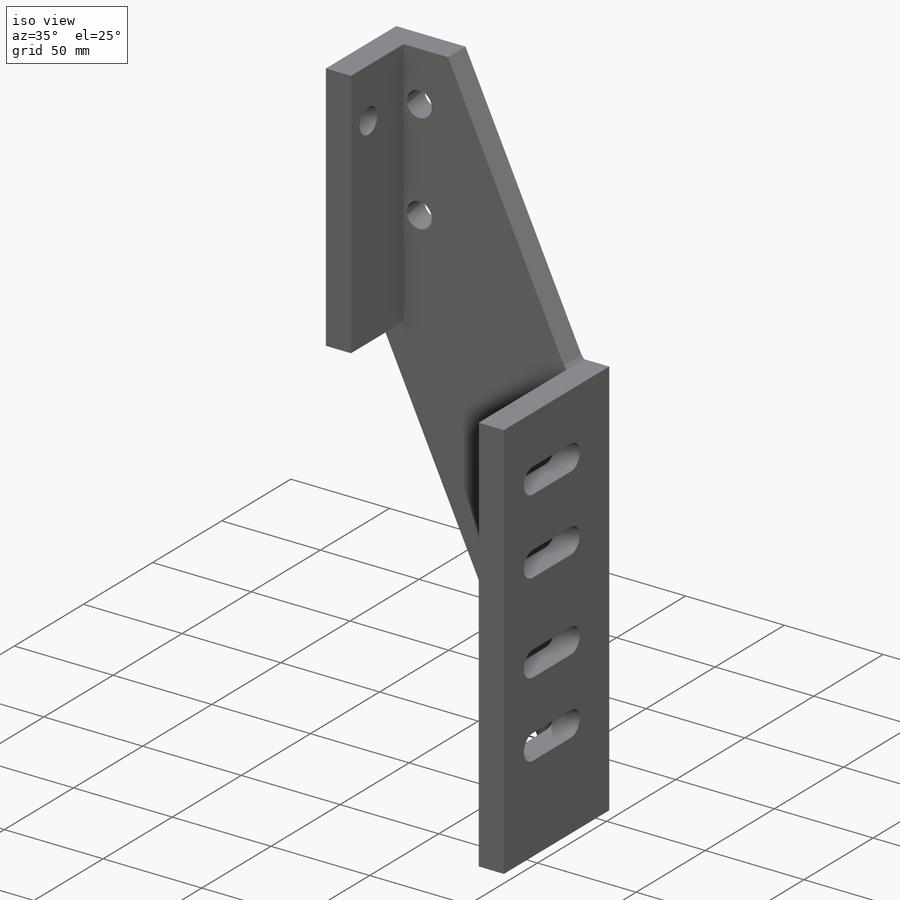
[diagram: iso view]
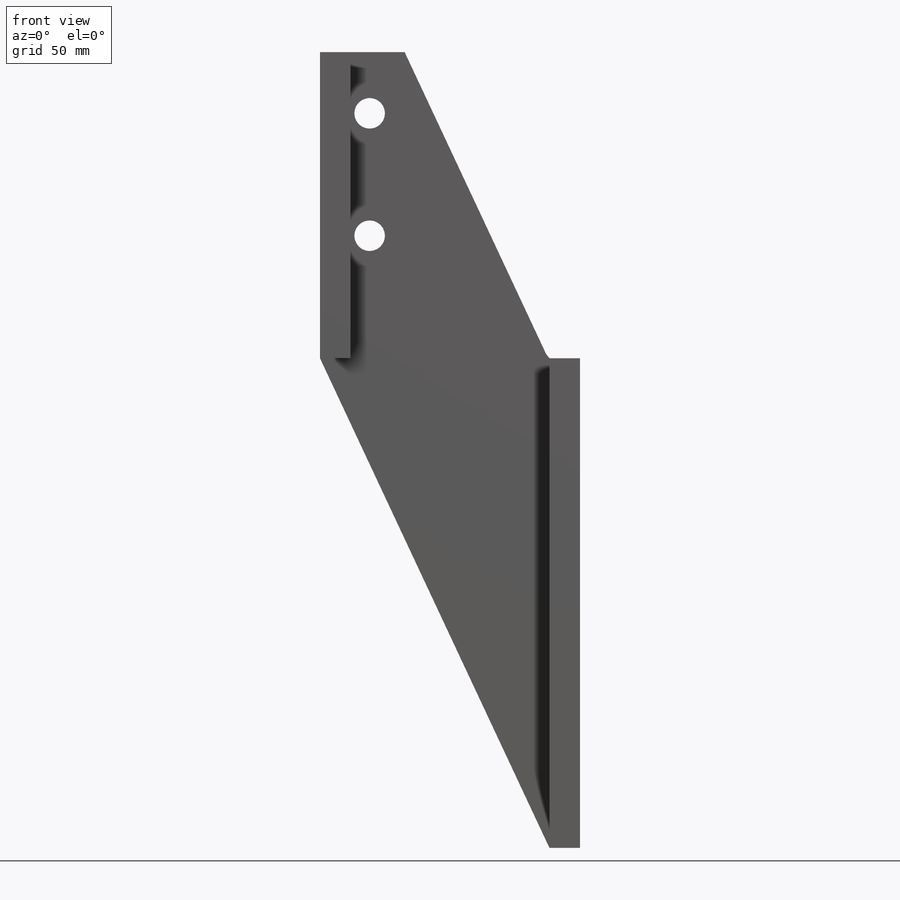
[diagram: front view]
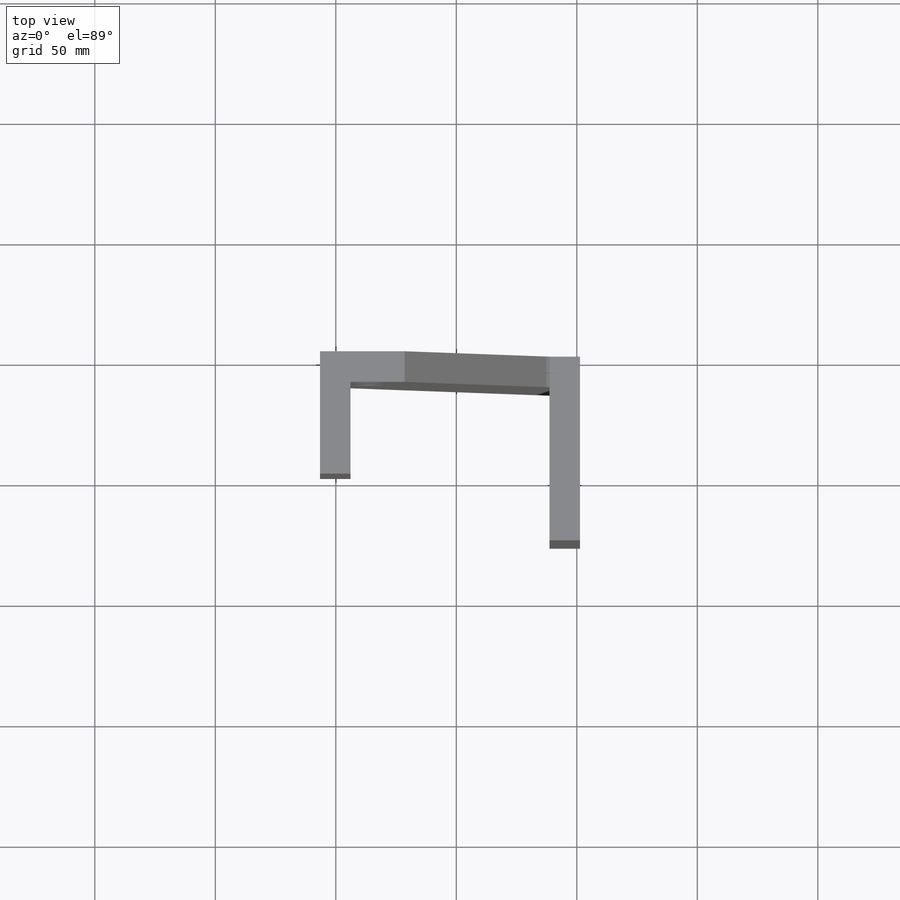
[diagram: top view]
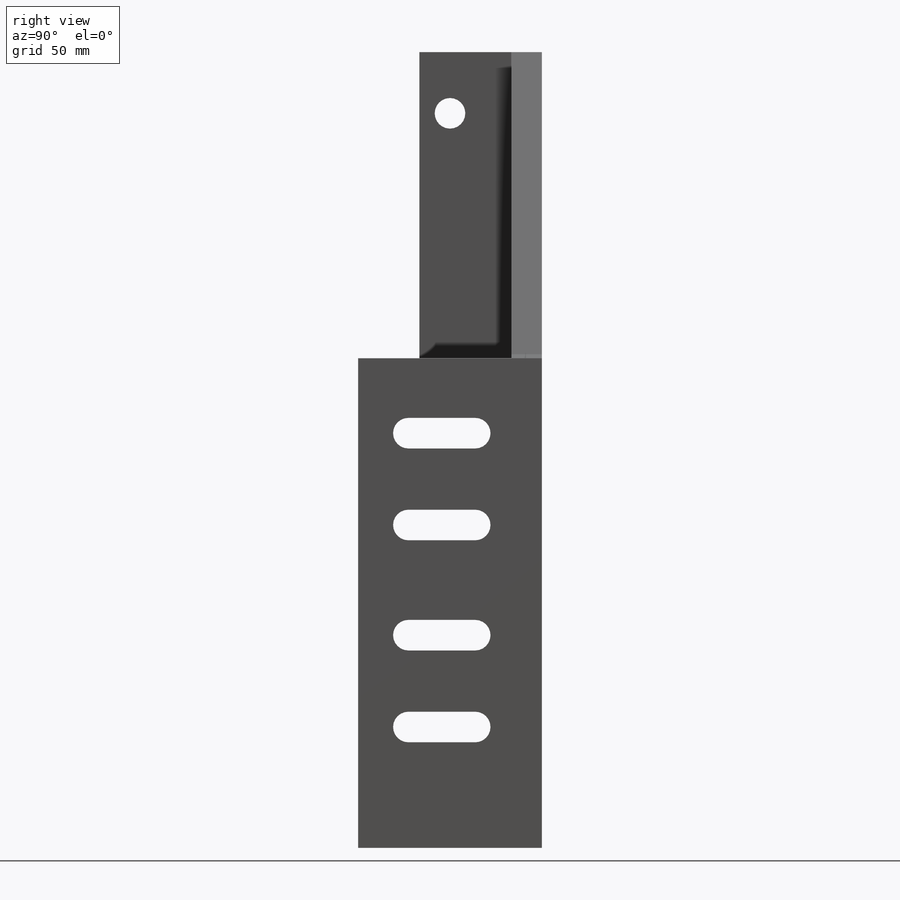
[diagram: right view]
SOLIDWORKS PART (.sldprt)
format: sldprt  version: not decoded by parser v0  size: 313,344 bytes
history: native  units: mm
features: sketch x8, extrude x3, hole x2, material x1, cut_extrude x1 (+14 scaffold rows collapsed)
feature tree (29):
  scaffold x14  (default folders/planes/origin — collapsed)
  material  "AISI 1018 Steel, Cold Rolled"
  sketch  "Sketch1"  dims[c1.D1=~62.806751mm c2.D1=~115.333807deg c3.D1=~101.525525mm c4.D1=25.11deg c5.D1=~10.389137mm]
  extrude  "Extrude1"  Depth=12.7mm
  sketch  "Sketch2"  dims[D1=127.0mm D2=12.7mm]
  extrude  "Extrude2"  Depth=38.1mm
  sketch  "Sketch3"
  extrude  "Extrude3"  Depth=63.5mm
  hole  "1/2-20 Tapped Hole1"  Diameter=12.7mm Depth=107.932853mm
  sketch  "3DSketch1"  dims[D1=25.4mm D2=38.1mm]
  sketch  "Sketch4"  dims[hole-wizard template sketch: 60 standard entries collapsed; hole parameters kept: c18.Thru Tap Drill Depth=~107.932853mm]
  hole  "1/2-20 Tapped Hole2"  Diameter=12.7mm Depth=76.2mm
  sketch  "3DSketch2"  dims[D1=25.4mm D2=20.6248mm D3=20.6248mm D4=50.8mm]
  sketch  "Sketch5"  dims[hole-wizard template sketch: 60 standard entries collapsed; hole parameters kept: c18.Thru Tap Drill Depth=76.2mm]
  sketch  "Sketch6"  dims[c1.D1=12.7mm c1.D2=12.7mm c2.D1=55.372mm c2.D2=69.215mm]
  cut_extrude  "Cut-Extrude1"  [1 undecoded]
decode coverage: 12 of 14 modeling features carry decoded parameters
note: ~ marks probable driven/reference dimensions
note: 1 parameter value undecoded
note: suppression state not decoded; provenance and decode notes live in map.json
